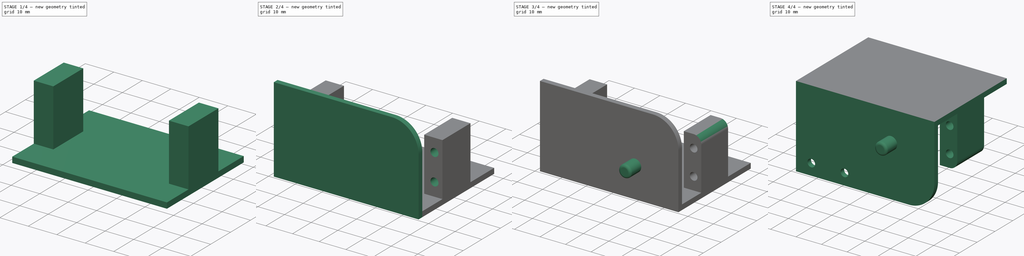
[diagram: build sequence overview — one tinted view per stage of 4, left to right]
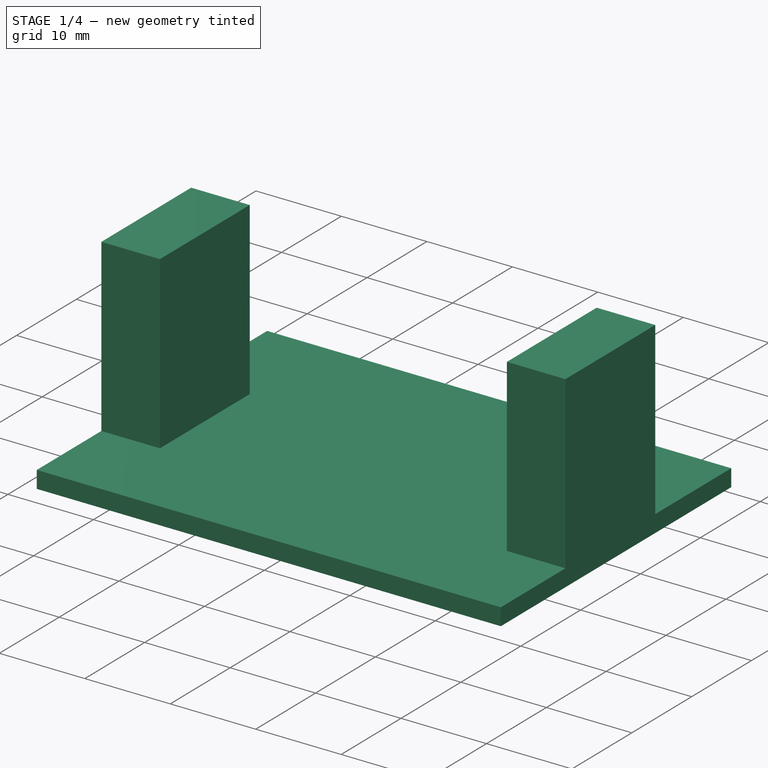
[diagram: stage 1 of 4 — iso view after this stage's code; geometry added in this stage tinted green]
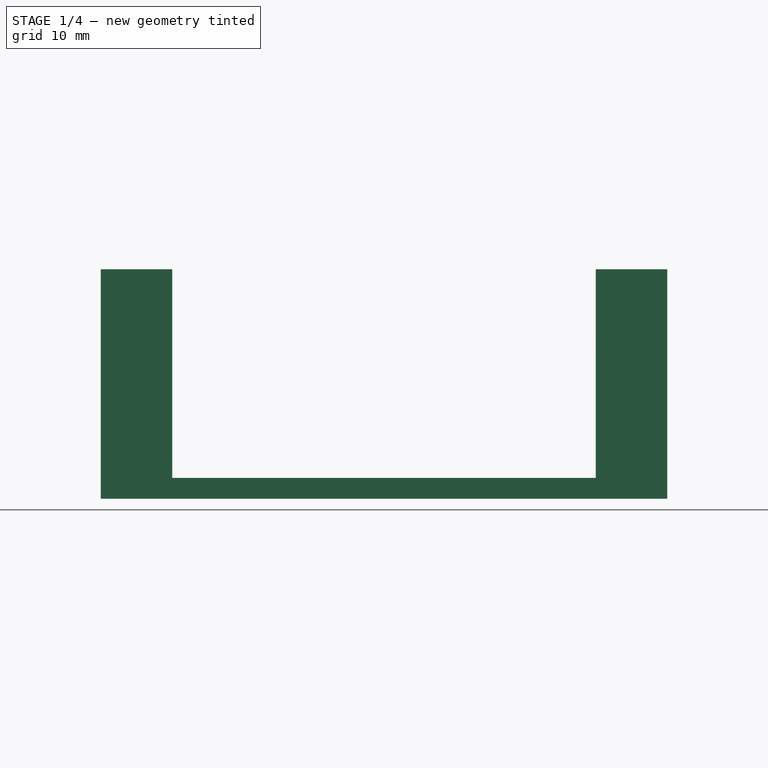
[diagram: stage 1 of 4 — front view after this stage's code; geometry added in this stage tinted green]
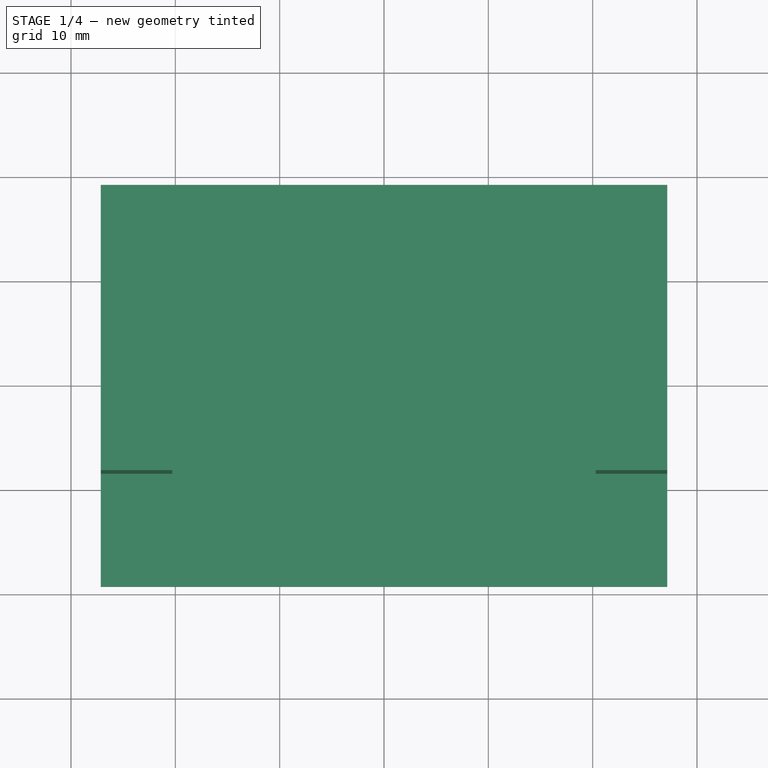
[diagram: stage 1 of 4 — top view after this stage's code; geometry added in this stage tinted green]
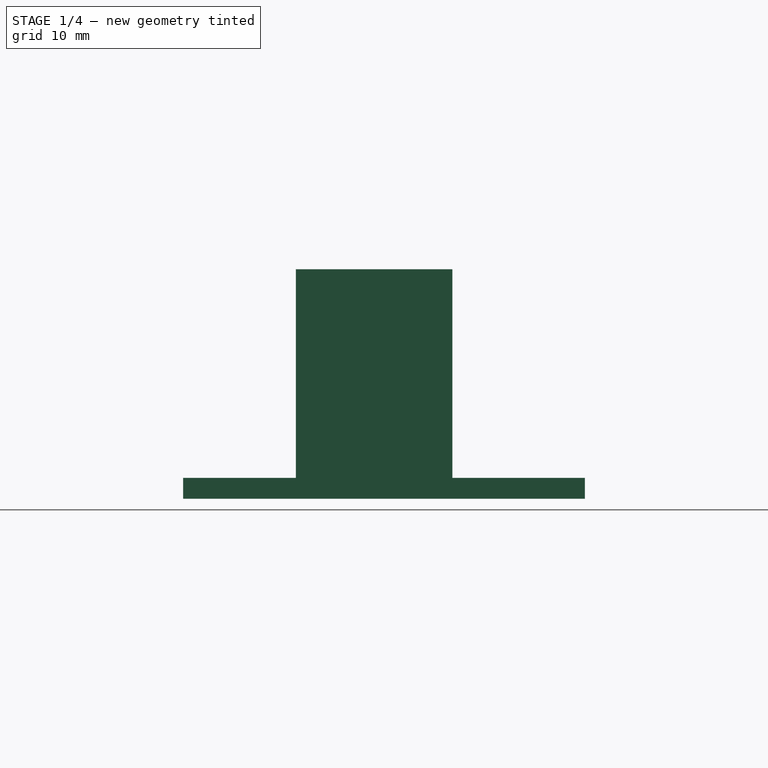
[diagram: stage 1 of 4 — right view after this stage's code; geometry added in this stage tinted green]
FCSTD DOCUMENT  (FreeCAD 0.21R33668 +26 (Git))
Label: 6L_hip_bearing2
License: All rights reserved
LicenseURL: http://en.wikipedia.org/wiki/All_rights_reserved
objects: Sketcher::SketchObject×6, PartDesign::Pad×4, PartDesign::Pocket×2, PartDesign::Fillet×2, Spreadsheet::Sheet×1, PartDesign::Body×1, Part::Mirroring×1
note: 24 computed .brp shape members not serialized (recipe doc carries the construction recipe); baked Part::Feature solids carry a one-line shape summary decoded from their .brp

FEATURE [Spreadsheet::Sheet] Spreadsheet
  cells = A1='tolerance; B1(tolerance)=0.2; A2='thickness; B2(thickness)=2; A3='servo_outer_x; B3(servo_x)=54.3; A4='servo_inner_x; B4(servo_inner_x)=40.2; A5='servo_y; B5(servo_y)=38.5; D5='sketch 41,5 real 38,0; A6='servo_z; B6(servo_z)=20; A7='foothold_hole_len; B7(foothold_hole_len)=40; A8='foothold_y_len; B8(foothold_y_len)=15; A9='foothold_y_pos; B9(foothold_y_pos)=25.8; C9='c; D9='sketch 27.8 real 25,1; A10='foothold_z_len; B10(foothold_z_len)==B6; C10='c; A11='foothold_x_len; B11(foothold_x_len)==(B3 - B4) / 2 - B1; C11='c; A12='upper_hole_z_pos; B12(upper_hole_z_pos)=15; C12='c; A13='lower_hole_z_pos; B13(lower_hole_z_pos)=5; C13='c; A14='hole_x_pos; B14(hole_x_pos)=-3; A15='hole_diameter; B15(hole_diameter)=3; A16='axis_x_pos; B16(axis_x_pos)=37.25; A17='axis_z_pos; B17(axis_z_pos)=10; A18='axis_y_pos; B18(axis_y_pos)=0; A19='axis_diameter; B19(axis_diameter)=5.9; A20='axis_diameter_bearing; B20(axis_diameter_bearing)=4.9; A21='axis_length; B21(axis_length)=6; A22='plate_y_dim; B22(plate_y_dim)==B5 + B2; C22='c; A23='hip_front_half_inner; B23(hip_front_half_inner)==30 + B2; C23='c; A24='hib_back_half_outer; B24(hib_back_half_outer)=42; A25='hip_back_full_outer; B25(hip_back_full_outer)==2 * B23; A26='hip_front_half_inner_len; B26(hip_front_half_inner_len)=25; A27='hip_height_frontback; B27(hip_height_frontback)=25
FEATURE [Sketcher::SketchObject] Sketch  label="basePlateSketch"
  FullyConstrained = true
  MapMode = 5
  Support = -> [XY_Plane001]
  expr: Constraints[10] = Spreadsheet.servo_y
  expr: Constraints[9] = Spreadsheet.servo_x
  sketch-geometry (4):
    g0: LineSegment StartX=-27.15 StartY=19.25 StartZ=0 EndX=27.15 EndY=19.25 EndZ=0
    g1: LineSegment StartX=27.15 StartY=19.25 StartZ=0 EndX=27.15 EndY=-19.25 EndZ=0
    g2: LineSegment StartX=27.15 StartY=-19.25 StartZ=0 EndX=-27.15 EndY=-19.25 EndZ=0
    g3: LineSegment StartX=-27.15 StartY=-19.25 StartZ=0 EndX=-27.15 EndY=19.25 EndZ=0
  constraints (11):
    c: Coincident(g0,g1)
    c: Coincident(g1,g2)
    c: Coincident(g2,g3)
    c: Coincident(g3,g0)
    c: Horizontal(g0)
    c: Horizontal(g2)
    c: Vertical(g1)
    c: Vertical(g3)
    c: Symmetric(g0,g1,g-1)
    c: DistanceX(g0,g0) = 54.3
    c: DistanceY(g3,g3) = 38.5
FEATURE [PartDesign::Pad] Pad  label="basePlatePad"
  Direction = (0,0,1)
  Length = 2
  Length2 = 10
  Profile = -> Sketch
  ReferenceAxis = -> Sketch [N_Axis]
  Type = 0
  expr: Length = Spreadsheet.thickness
FEATURE [Sketcher::SketchObject] Sketch001  label="servoHolderSketch"
  ExternalGeometry = -> [Pad]
  FullyConstrained = true
  MapMode = 5
  Placement = pos=(0,0,2) rot=(0,0,1;0rad)
  Support = -> [Pad]
  expr: Constraints[19] = Spreadsheet.foothold_y_pos
  expr: Constraints[21] = Spreadsheet.foothold_y_len
  expr: Constraints[22] = Spreadsheet.foothold_x_len
  expr: Constraints[23] = Spreadsheet.foothold_x_len
  sketch-geometry (8):
    g0: LineSegment StartX=27.15 StartY=6.55 StartZ=0 EndX=20.3 EndY=6.55 EndZ=0
    g1: LineSegment StartX=20.3 StartY=6.55 StartZ=0 EndX=20.3 EndY=-8.45 EndZ=0
    g2: LineSegment StartX=20.3 StartY=-8.45 StartZ=0 EndX=27.15 EndY=-8.45 EndZ=0
    g3: LineSegment StartX=27.15 StartY=-8.45 StartZ=0 EndX=27.15 EndY=6.55 EndZ=0
    g4: LineSegment StartX=-27.15 StartY=6.55 StartZ=0 EndX=-20.3 EndY=6.55 EndZ=0
    g5: LineSegment StartX=-20.3 StartY=6.55 StartZ=0 EndX=-20.3 EndY=-8.45 EndZ=0
    g6: LineSegment StartX=-20.3 StartY=-8.45 StartZ=0 EndX=-27.15 EndY=-8.45 EndZ=0
    g7: LineSegment StartX=-27.15 StartY=-8.45 StartZ=0 EndX=-27.15 EndY=6.55 EndZ=0
  constraints (24):
    c: Coincident(g0,g1)
    c: Coincident(g1,g2)
    c: Coincident(g2,g3)
    c: Coincident(g3,g0)
    c: Horizontal(g0)
    c: Horizontal(g2)
    c: Vertical(g1)
    c: Vertical(g3)
    c: PointOnObject(g0,g-3)
    c: Coincident(g4,g5)
    c: Coincident(g5,g6)
    c: Coincident(g6,g7)
    c: Coincident(g7,g4)
    c: Horizontal(g4)
    c: Horizontal(g6)
    c: Vertical(g5)
    c: Vertical(g7)
    c: PointOnObject(g4,g-4)
    c: Horizontal(g4,g0)
    c: DistanceY(g-3,g0) = 25.8
    c: Horizontal(g6,g2)
    c: DistanceY(g3,g3) = 15
    c: DistanceX(g0,g0) = 6.85
    c: DistanceX(g4,g4) = 6.85
FEATURE [PartDesign::Pad] Pad001  label="servoHolderPad"
  BaseFeature = -> Pad
  Direction = (0,0,1)
  Length = 20
  Length2 = 10
  Profile = -> Sketch001
  ReferenceAxis = -> Sketch001 [N_Axis]
  Type = 0
  expr: Length = Spreadsheet.foothold_z_len
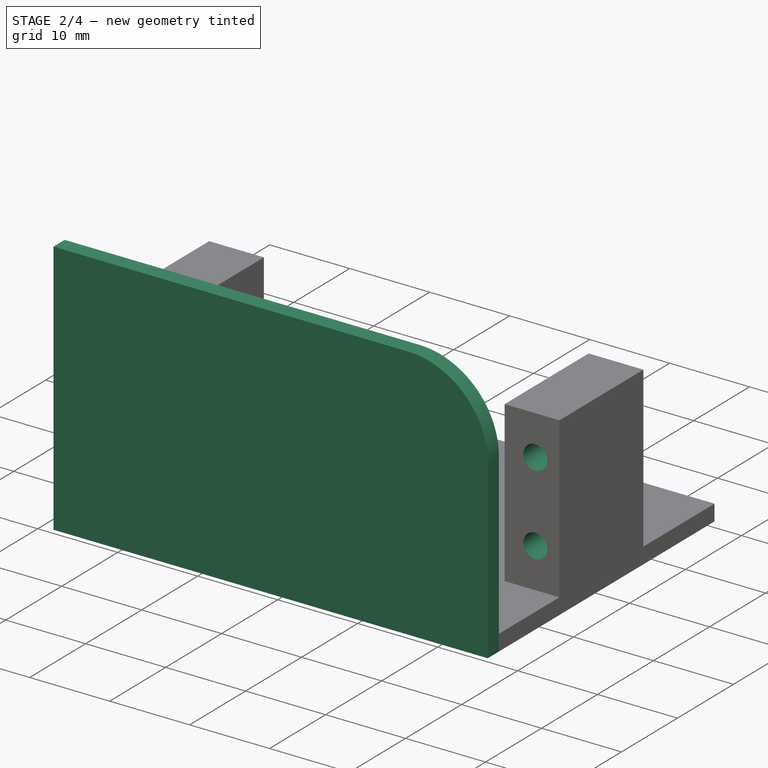
[diagram: stage 2 of 4 — iso view after this stage's code; geometry added in this stage tinted green]
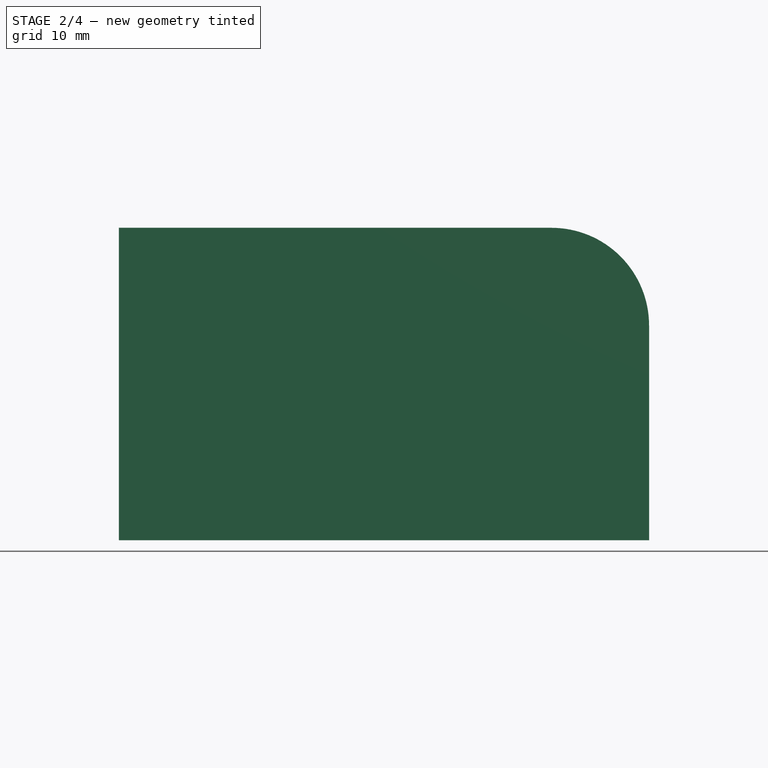
[diagram: stage 2 of 4 — front view after this stage's code; geometry added in this stage tinted green]
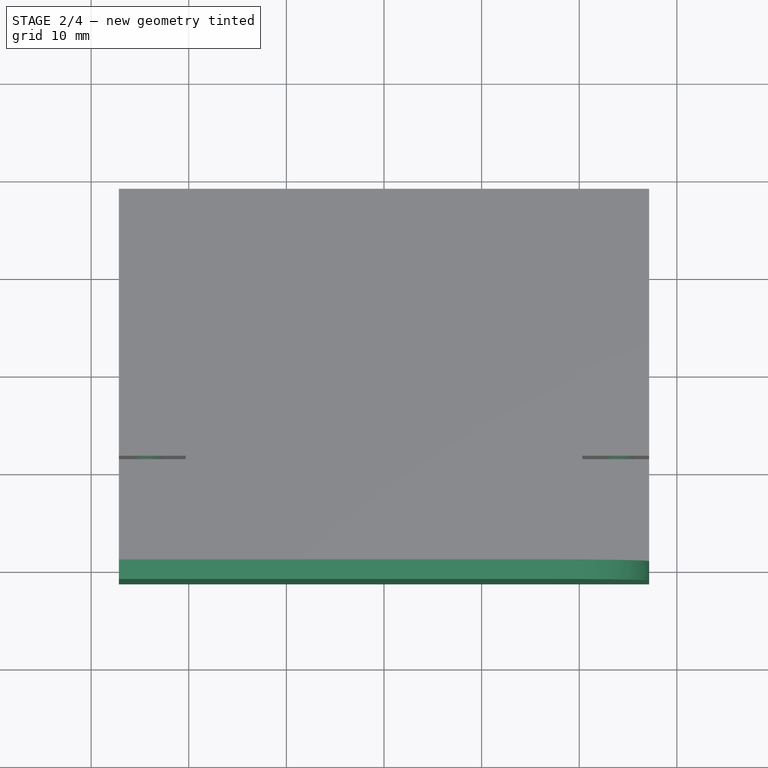
[diagram: stage 2 of 4 — top view after this stage's code; geometry added in this stage tinted green]
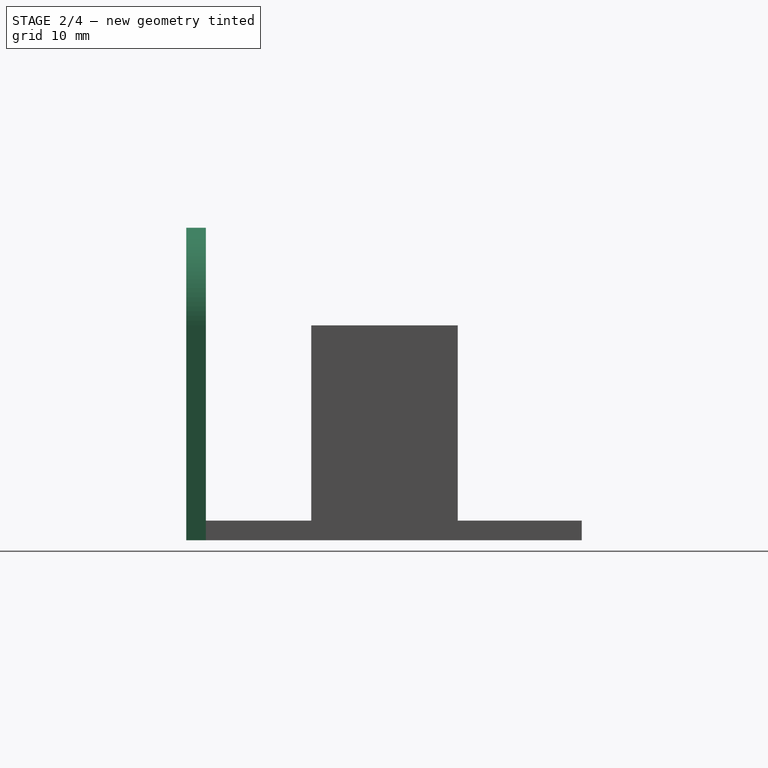
[diagram: stage 2 of 4 — right view after this stage's code; geometry added in this stage tinted green]
FEATURE [Sketcher::SketchObject] Sketch002  label="servoHolesSketch"
  ExternalGeometry = -> [Pad001]
  FullyConstrained = true
  MapMode = 5
  Placement = pos=(0,-8.45,0) rot=(1,0,0;1.5708rad)
  Support = -> [Pad001]
  expr: Constraints[10] = -Spreadsheet.hole_x_pos
  expr: Constraints[11] = -Spreadsheet.hole_x_pos
  expr: Constraints[3] = Spreadsheet.hole_diameter
  expr: Constraints[8] = Spreadsheet.lower_hole_z_pos
  expr: Constraints[9] = Spreadsheet.upper_hole_z_pos
  sketch-geometry (4):
    g0: Circle CenterX=24.15 CenterY=17 CenterZ=0 NormalX=0 NormalY=0 NormalZ=1 AngleXU=0 Radius=1.5
    g1: Circle CenterX=24.15 CenterY=7 CenterZ=0 NormalX=0 NormalY=0 NormalZ=1 AngleXU=0 Radius=1.5
    g2: Circle CenterX=-24.15 CenterY=17 CenterZ=0 NormalX=0 NormalY=0 NormalZ=1 AngleXU=0 Radius=1.5
    g3: Circle CenterX=-24.15 CenterY=7 CenterZ=0 NormalX=0 NormalY=0 NormalZ=1 AngleXU=0 Radius=1.5
  constraints (12):
    c: Equal(g2,g3)
    c: Equal(g2,g0)
    c: Equal(g2,g1)
    c: Diameter(g2) = 3
    c: Vertical(g1,g0)
    c: Vertical(g2,g3)
    c: Horizontal(g2,g0)
    c: Horizontal(g3,g1)
    c: DistanceY(g-3,g1) = 5
    c: DistanceY(g-3,g0) = 15
    c: DistanceX(g1,g-3) = 3
    c: DistanceX(g-4,g3) = 3
FEATURE [PartDesign::Pocket] Pocket  label="servoHolesPocket"
  BaseFeature = -> Pad001
  Direction = (0,1,-2e-16)
  Length = 15
  Length2 = 5
  Profile = -> Sketch002
  ReferenceAxis = -> Sketch002 [N_Axis]
  Type = 0
  expr: Length = Spreadsheet.foothold_y_len
FEATURE [Sketcher::SketchObject] Sketch003  label="hipBackPlateSketch"
  ExternalGeometry = -> [Pocket]
  FullyConstrained = true
  MapMode = 5
  Placement = pos=(0,-19.25,0) rot=(1,0,0;1.5708rad)
  Support = -> [Pocket]
  expr: Constraints[10] = Spreadsheet.hip_front_half_inner
  sketch-geometry (5):
    g0: LineSegment StartX=-27.15 StartY=0 StartZ=0 EndX=27.15 EndY=0 EndZ=0
    g1: LineSegment StartX=27.15 StartY=0 StartZ=0 EndX=27.15 EndY=22 EndZ=0
    g2: LineSegment StartX=17.15 StartY=32 StartZ=0 EndX=-27.15 EndY=32 EndZ=0
    g3: LineSegment StartX=-27.15 StartY=32 StartZ=0 EndX=-27.15 EndY=0 EndZ=0
    g4: ArcOfCircle CenterX=17.15 CenterY=22 CenterZ=0 NormalX=0 NormalY=0 NormalZ=1 AngleXU=0 Radius=10 StartAngle=0 EndAngle=1.5708
  constraints (12):
    c: Coincident(g0,g1)
    c: Coincident(g2,g3)
    c: Coincident(g3,g0)
    c: Horizontal(g2)
    c: Vertical(g1)
    c: Vertical(g3)
    c: Coincident(g0,g-3)
    c: Coincident(g0,g-3)
    c: Tangent(g2,g4) = -1.5708
    c: Tangent(g1,g4) = -1.5708
    c: DistanceY(g0,g2) = 32
    c: Horizontal(g4,g-4)
FEATURE [PartDesign::Pad] Pad002  label="hipBackPlatePad"
  BaseFeature = -> Pocket
  Direction = (0,-1,2e-16)
  Length = 2
  Length2 = 10
  Profile = -> Sketch003
  ReferenceAxis = -> Sketch003 [N_Axis]
  Type = 0
  expr: Length = Spreadsheet.thickness
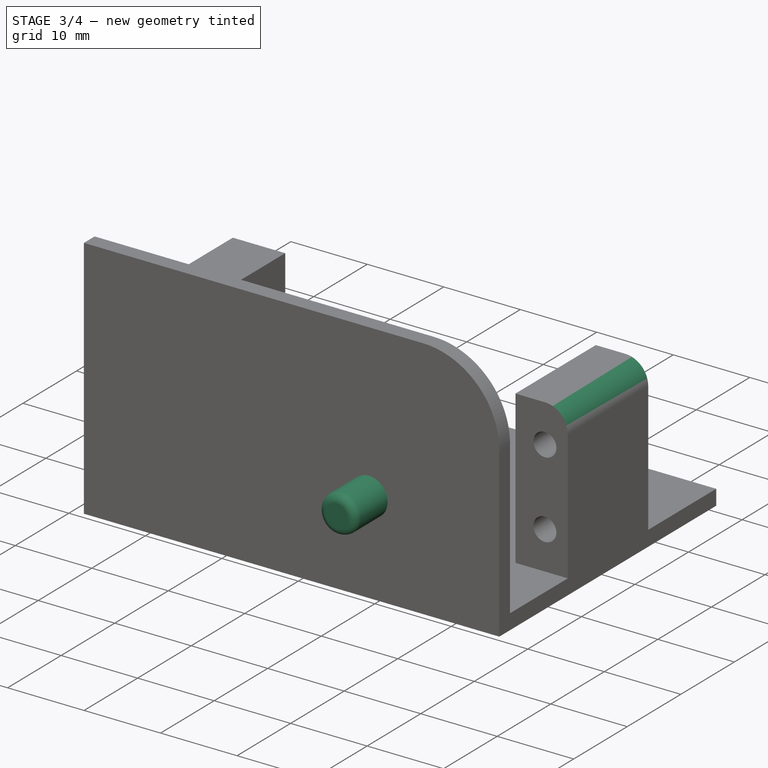
[diagram: stage 3 of 4 — iso view after this stage's code; geometry added in this stage tinted green]
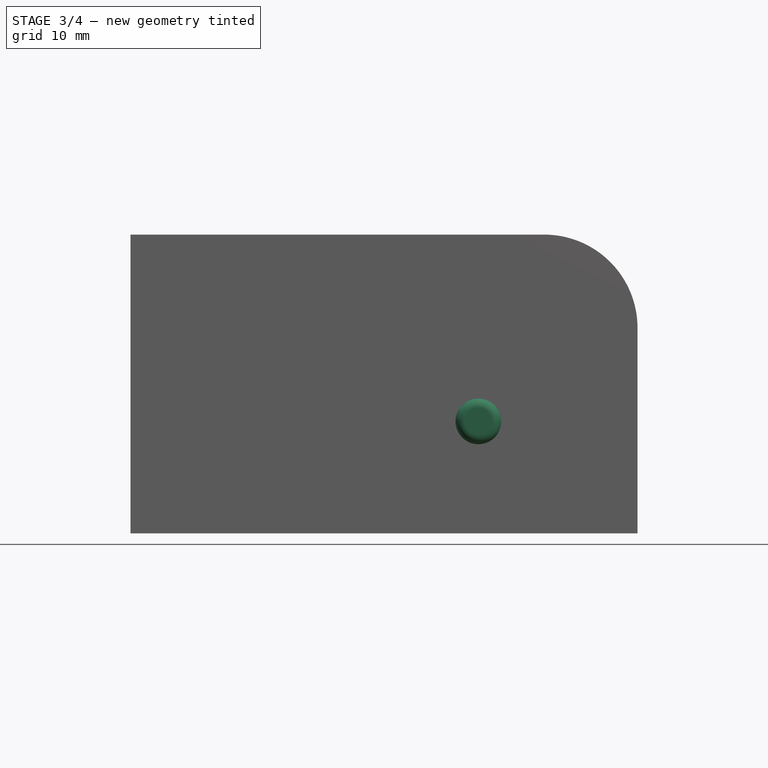
[diagram: stage 3 of 4 — front view after this stage's code; geometry added in this stage tinted green]
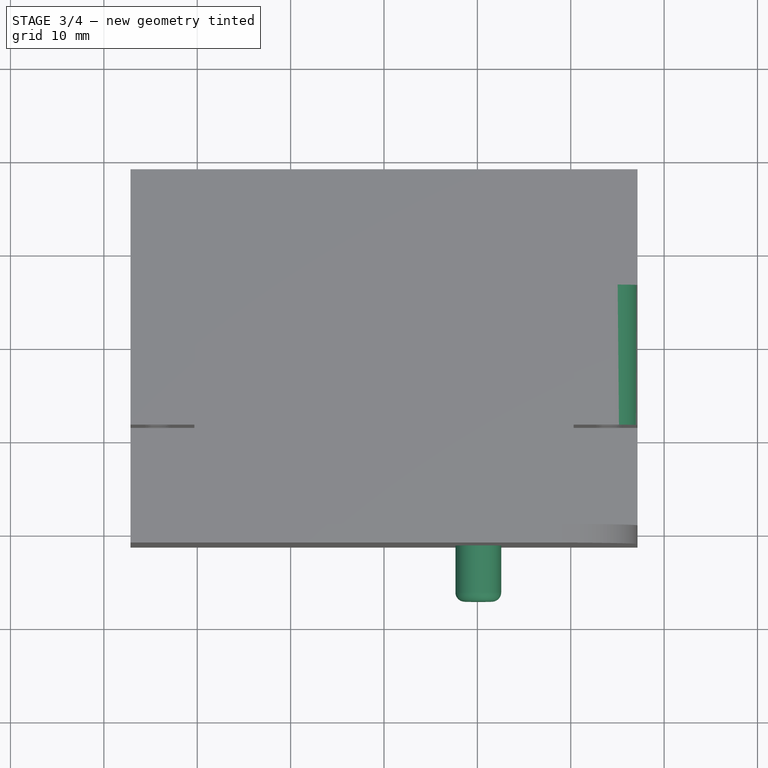
[diagram: stage 3 of 4 — top view after this stage's code; geometry added in this stage tinted green]
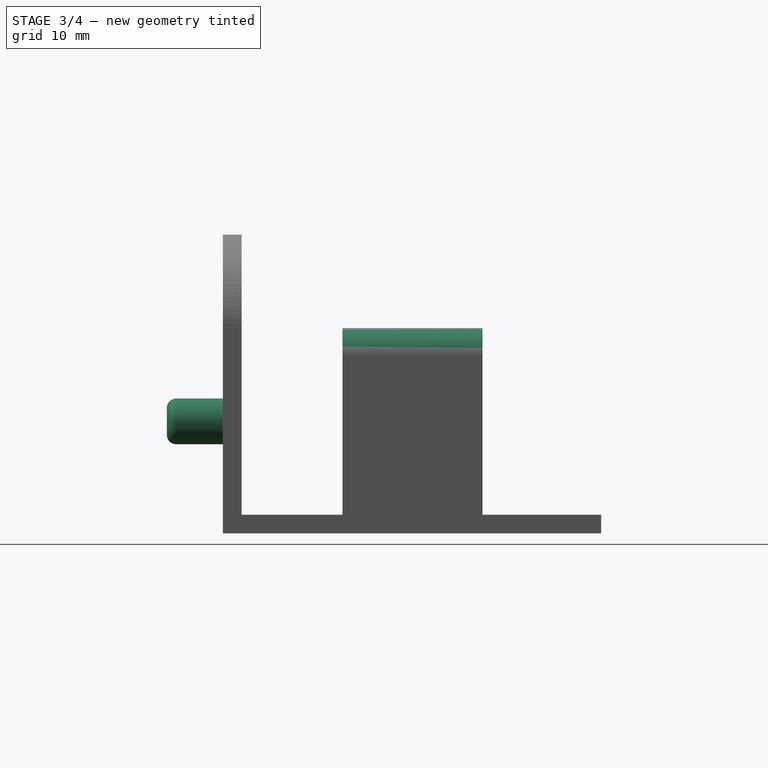
[diagram: stage 3 of 4 — right view after this stage's code; geometry added in this stage tinted green]
FEATURE [PartDesign::Fillet] Fillet  label="servoHolderFillet"
  Base = -> Pad002 [Edge36]
  BaseFeature = -> Pad002
  Radius = 3
  SupportTransform = false
  UseAllEdges = false
FEATURE [Sketcher::SketchObject] Sketch004  label="AxisKnobSketch"
  ExternalGeometry = -> [Fillet]
  FullyConstrained = true
  MapMode = 5
  Placement = pos=(-1e-16,-21.25,4.7e-15) rot=(1,0,0;1.5708rad)
  Support = -> [Fillet]
  expr: Constraints[0] = Spreadsheet.axis_diameter_bearing
  expr: Constraints[1] = Spreadsheet.axis_z_pos
  expr: Constraints[2] = Spreadsheet.axis_x_pos
  sketch-geometry (1):
    g0: Circle CenterX=10.1 CenterY=12 CenterZ=0 NormalX=0 NormalY=0 NormalZ=1 AngleXU=0 Radius=2.45
  constraints (3):
    c: Diameter(g0) = 4.9
    c: DistanceY(g-3,g0) = 10
    c: DistanceX(g-3,g0) = 37.25
FEATURE [PartDesign::Pad] Pad003  label="AxisKnobPad"
  BaseFeature = -> Fillet
  Direction = (0,-1,2e-16)
  Length = 6
  Length2 = 10
  Profile = -> Sketch004
  ReferenceAxis = -> Sketch004 [N_Axis]
  Type = 0
  expr: Length = Spreadsheet.axis_length
FEATURE [PartDesign::Fillet] Fillet001  label="AxisKnobFillet"
  Base = -> Pad003 [Edge70]
  BaseFeature = -> Pad003
  Radius = 1
  SupportTransform = false
  UseAllEdges = false
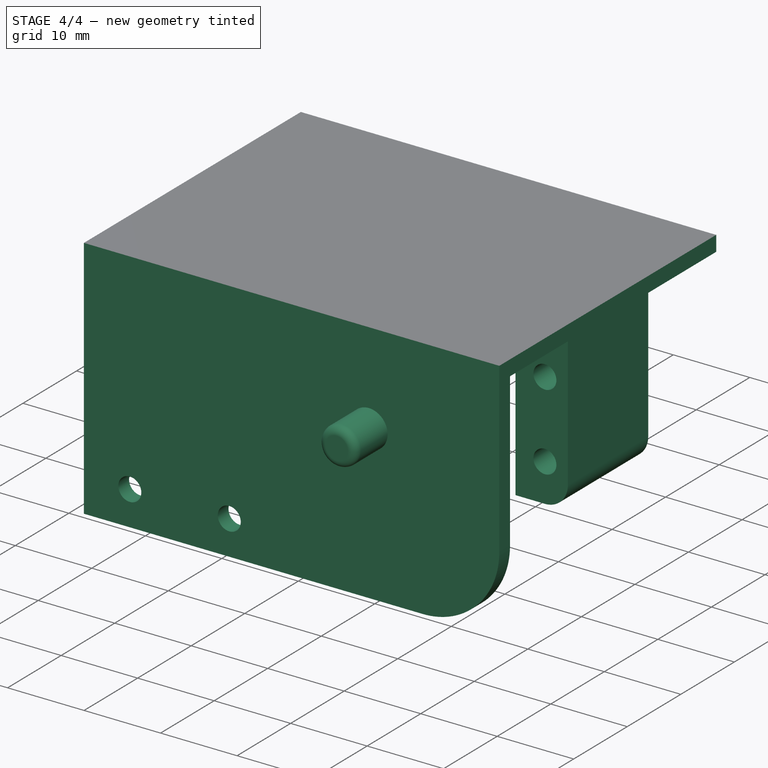
[diagram: stage 4 of 4 — iso view after this stage's code; geometry added in this stage tinted green]
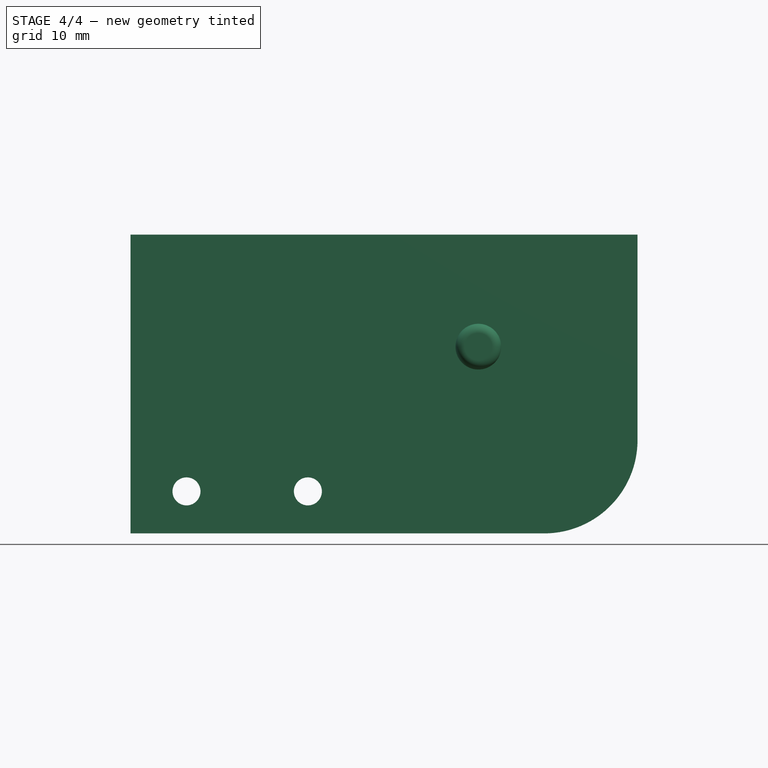
[diagram: stage 4 of 4 — front view after this stage's code; geometry added in this stage tinted green]
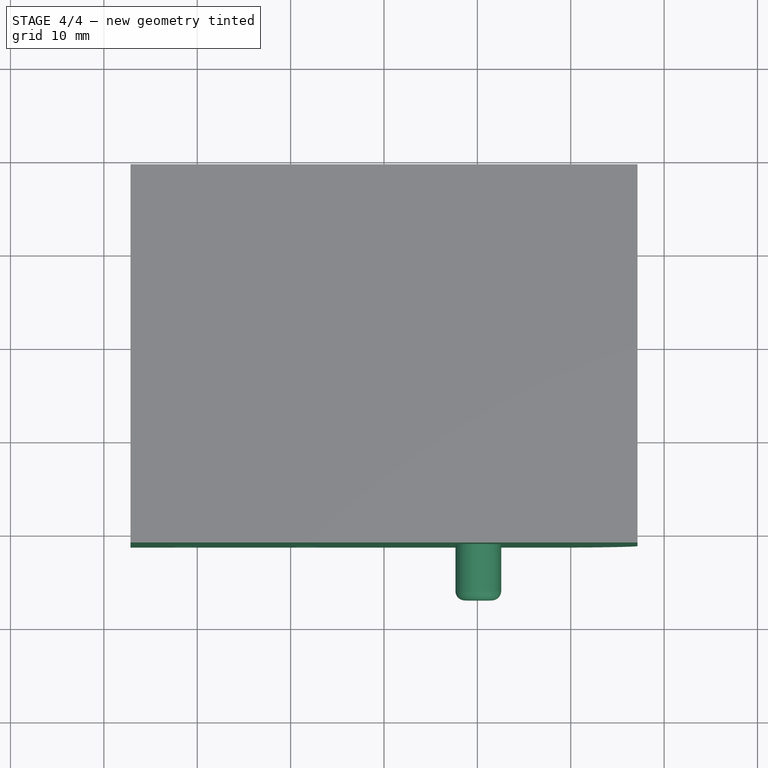
[diagram: stage 4 of 4 — top view after this stage's code; geometry added in this stage tinted green]
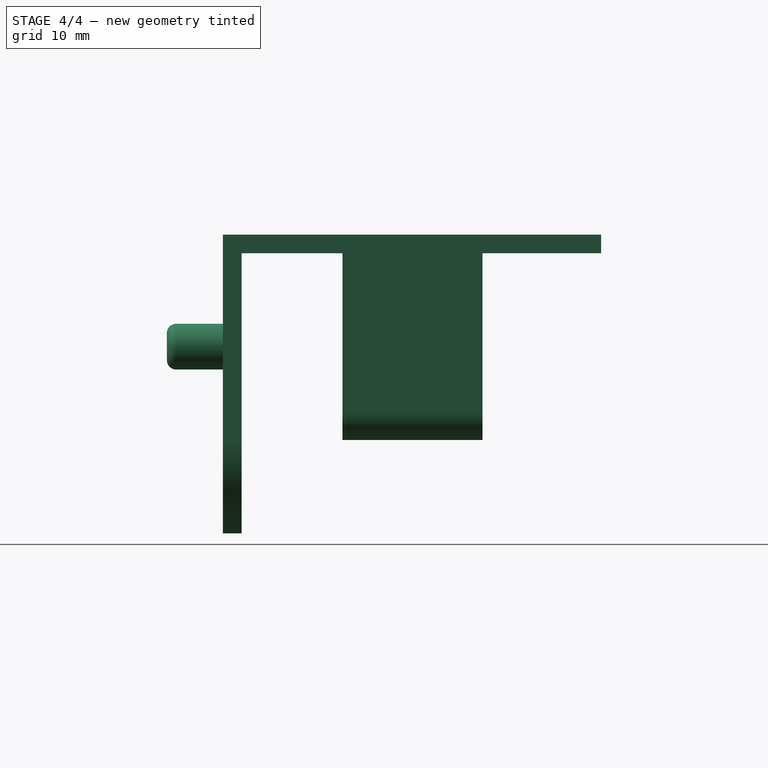
[diagram: stage 4 of 4 — right view after this stage's code; geometry added in this stage tinted green]
FEATURE [Sketcher::SketchObject] Sketch005
  ExternalGeometry = -> [Fillet001]
  FullyConstrained = true
  MapMode = 5
  Placement = pos=(-1e-16,-21.25,4.7e-15) rot=(1,0,0;1.5708rad)
  Support = -> [Fillet001]
  expr: Constraints[3] = Spreadsheet.hip_height_frontback - 6
  expr: Constraints[5] = Spreadsheet.hole_diameter
  sketch-geometry (2):
    g0: Circle CenterX=-21.15 CenterY=27.5 CenterZ=0 NormalX=0 NormalY=0 NormalZ=1 AngleXU=0 Radius=1.5
    g1: Circle CenterX=-8.15 CenterY=27.5 CenterZ=0 NormalX=0 NormalY=0 NormalZ=1 AngleXU=0 Radius=1.5
  constraints (6):
    c: Horizontal(g0,g1)
    c: DistanceY(g0,g-4) = 4.5
    c: DistanceX(g-4,g0) = 6
    c: DistanceX(g-4,g1) = 19
    c: Equal(g0,g1)
    c: Diameter(g0) = 3
FEATURE [PartDesign::Pocket] Pocket001
  BaseFeature = -> Fillet001
  Direction = (0,1,-2e-16)
  Length = 5
  Length2 = 5
  Profile = -> Sketch005
  ReferenceAxis = -> Sketch005 [N_Axis]
  Type = 0
FEATURE [PartDesign::Body] Body001  label="Body"
  Group = -> [Sketch,Pad,Sketch001,Pad001,Sketch002,Pocket,Sketch003,Pad002,Fillet,Sketch004,Pad003,Fillet001,Sketch005,Pocket001]
  Origin = -> Origin001
  Tip = -> Pocket001
FEATURE [Part::Mirroring] Part__Mirroring  label="Body (Mirror #1)"
  Base = (0,0,0)
  Normal = (0,0,1)
  Source = -> Body001
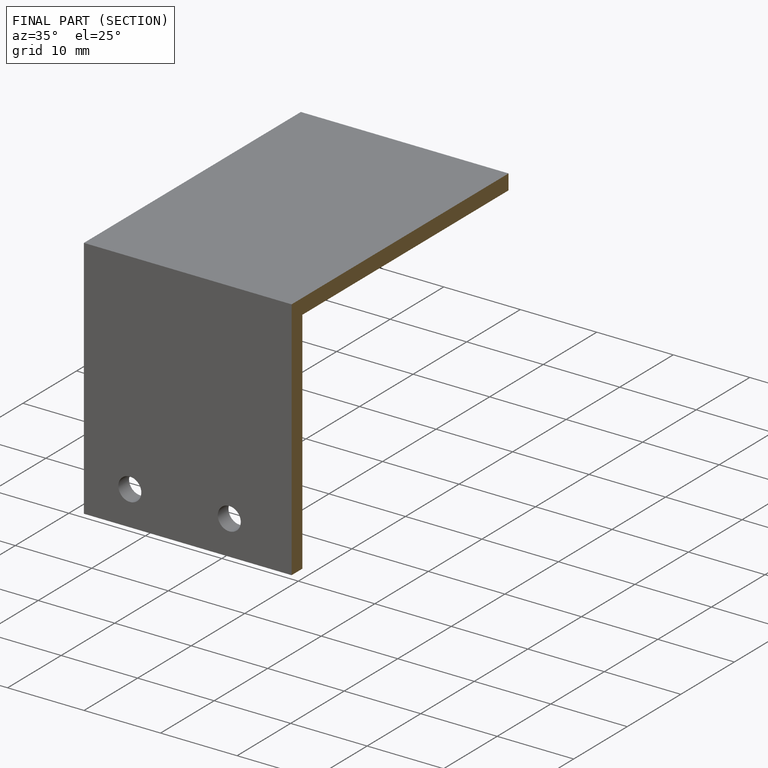
[diagram: finished part — half-section view (interior)]
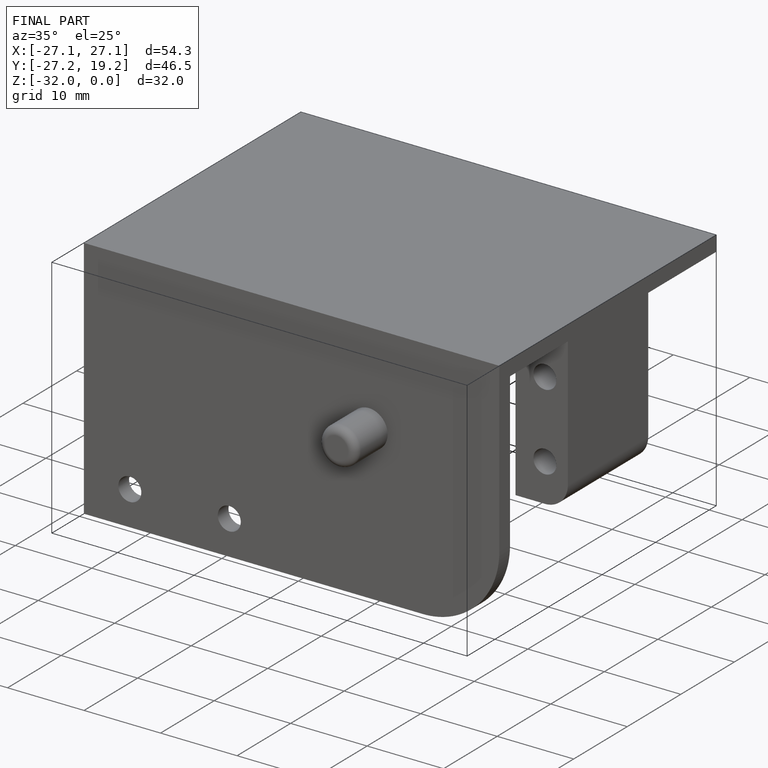
[diagram: finished part — iso view with bounding-box wireframe]
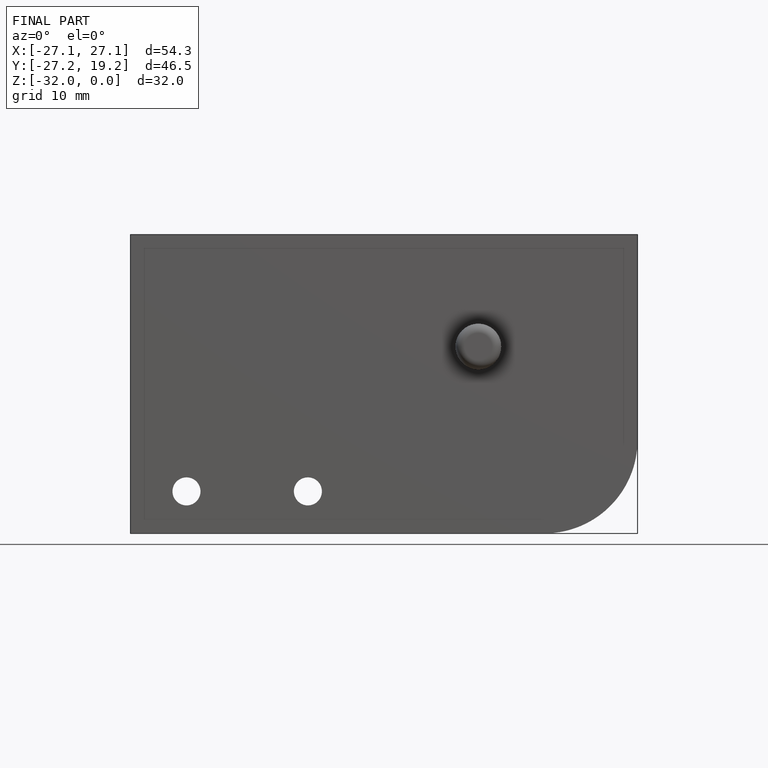
[diagram: finished part — front view with bounding-box wireframe]
